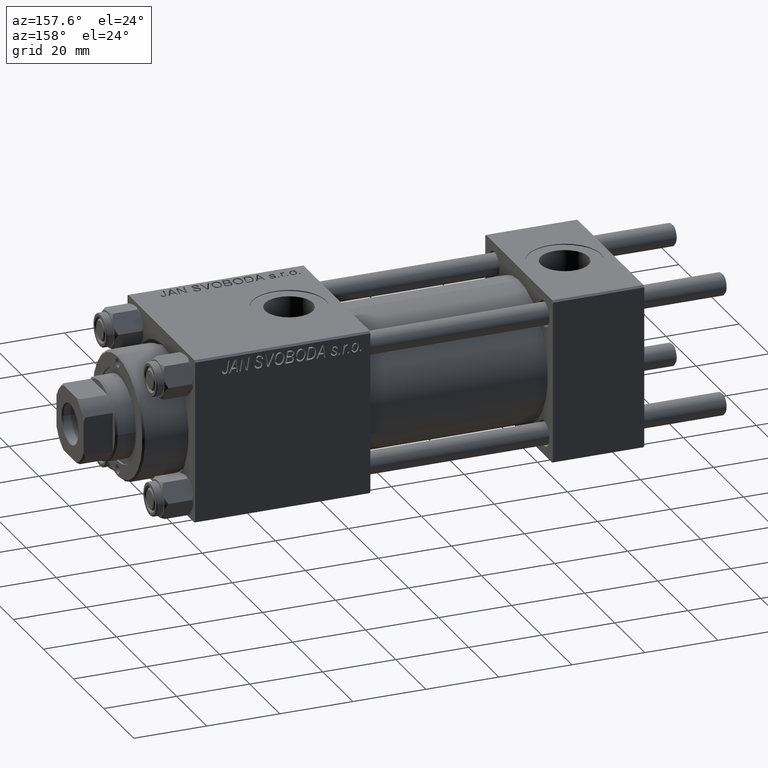
[diagram: clean part render]
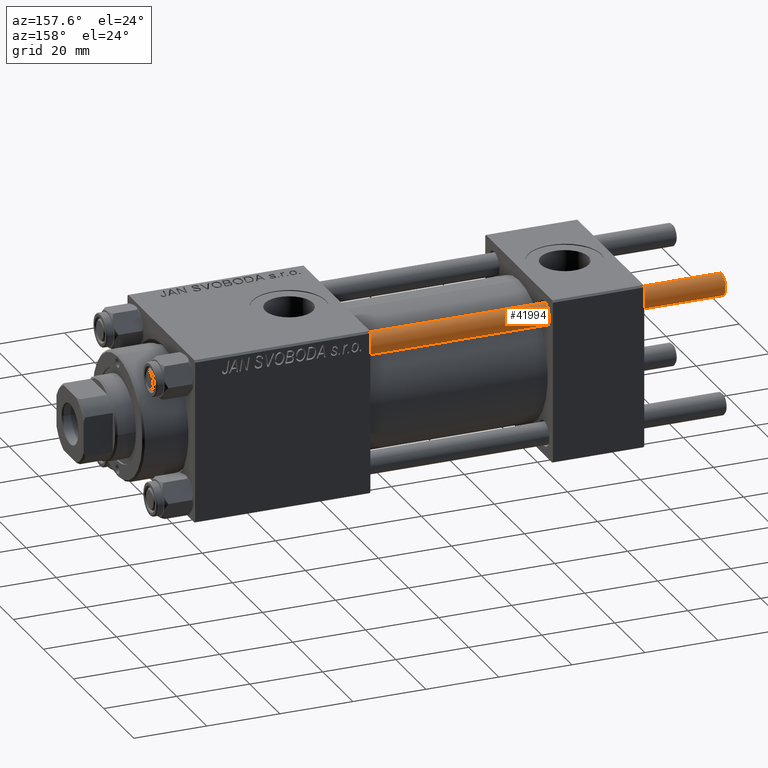
[diagram: same view with one face highlighted and labeled with its STEP entity id]
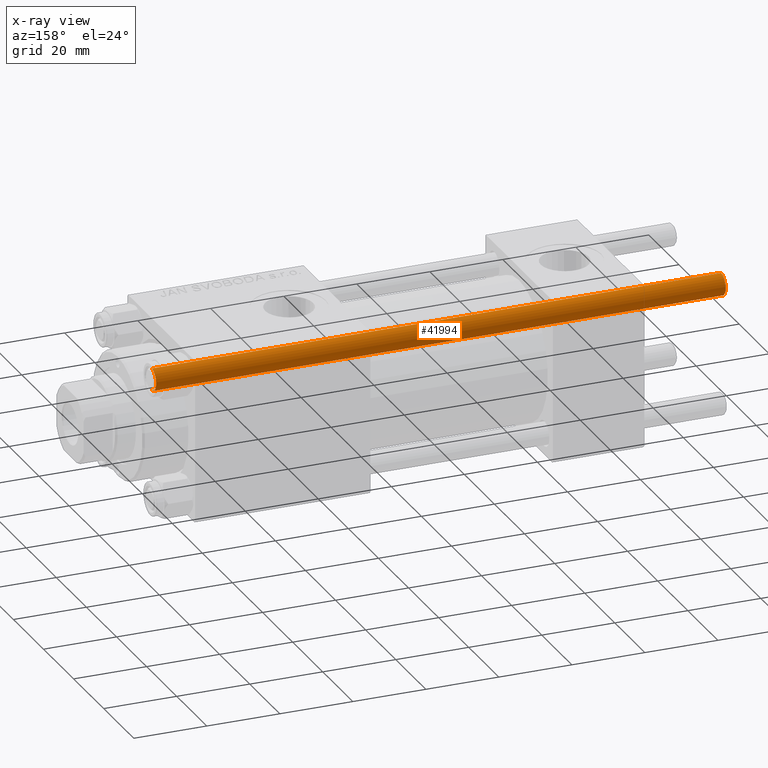
[diagram: x-ray of the same camera — body ghosted, the highlighted face saturated]
A machine part, auxiliary view. The second image highlights one B-rep face of the part: STEP entity #41994.
The next image is the same camera in x-ray: the body ghosted, the highlighted face saturated — about 0% of this face is hidden behind the body in this view.
In plain terms, the highlighted cylindrical surface (edge-blend (fillet) strip) has radius 3 mm, axis along (-1, -0, -0).
Its self-contained STEP definition (entity closure, byte-faithful):
#46 = EDGE_CURVE ( 'NONE', #40338, #33728, #46517, .T. ) ;
#4175 = ORIENTED_EDGE ( 'NONE', *, *, #10466, .F. ) ;
#4250 = DIRECTION ( 'NONE',  ( -0.000000000000000000, -0.000000000000000000, -1.000000000000000000 ) ) ;
#4292 = CIRCLE ( 'NONE', #32814, 3.000000000000000444 ) ;
#4408 = VECTOR ( 'NONE', #28742, 1000.000000000000000 ) ;
#6270 = ORIENTED_EDGE ( 'NONE', *, *, #23502, .T. ) ;
#8562 = EDGE_CURVE ( 'NONE', #48596, #40338, #35588, .T. ) ;
#9511 = DIRECTION ( 'NONE',  ( -0.000000000000000000, -0.000000000000000000, 1.000000000000000000 ) ) ;
#9581 = LINE ( 'NONE', #37461, #41546 ) ;
#10025 = CARTESIAN_POINT ( 'NONE',  ( 0.000000000000000000, 0.000000000000000000, 0.4999999999999726885 ) ) ;
#10058 = ORIENTED_EDGE ( 'NONE', *, *, #8562, .T. ) ;
#10466 = EDGE_CURVE ( 'NONE', #48596, #17580, #9581, .T. ) ;
#10497 = CARTESIAN_POINT ( 'NONE',  ( 3.000000000000000444, 3.673940397442060361E-16, 157.0000000000000000 ) ) ;
#12131 = FACE_OUTER_BOUND ( 'NONE', #13395, .T. ) ;
#12245 = CARTESIAN_POINT ( 'NONE',  ( -3.000000000000000444, 0.000000000000000000, 0.4999999999999726885 ) ) ;
#13395 = EDGE_LOOP ( 'NONE', ( #10058, #50425, #6270, #4175 ) ) ;
#17386 = DIRECTION ( 'NONE',  ( 1.000000000000000000, 0.000000000000000000, 0.000000000000000000 ) ) ;
#17580 = VERTEX_POINT ( 'NONE', #12245 ) ;
#18695 = CARTESIAN_POINT ( 'NONE',  ( 3.000000000000000444, 3.673940397442060361E-16, 156.5000000000000284 ) ) ;
#19608 = AXIS2_PLACEMENT_3D ( 'NONE', #30273, #21860, #17386 ) ;
#21411 = DIRECTION ( 'NONE',  ( -0.000000000000000000, -0.000000000000000000, -1.000000000000000000 ) ) ;
#21860 = DIRECTION ( 'NONE',  ( 0.000000000000000000, 0.000000000000000000, -1.000000000000000000 ) ) ;
#23502 = EDGE_CURVE ( 'NONE', #33728, #17580, #4292, .T. ) ;
#24236 = CYLINDRICAL_SURFACE ( 'NONE', #40039, 3.000000000000000444 ) ;
#28742 = DIRECTION ( 'NONE',  ( -0.000000000000000000, -0.000000000000000000, -1.000000000000000000 ) ) ;
#30273 = CARTESIAN_POINT ( 'NONE',  ( 0.000000000000000000, 0.000000000000000000, 156.5000000000000284 ) ) ;
#30530 = DIRECTION ( 'NONE',  ( 1.000000000000000000, 0.000000000000000000, 0.000000000000000000 ) ) ;
#32814 = AXIS2_PLACEMENT_3D ( 'NONE', #10025, #9511, #30530 ) ;
#33426 = DIRECTION ( 'NONE',  ( -1.000000000000000000, 0.000000000000000000, 0.000000000000000000 ) ) ;
#33728 = VERTEX_POINT ( 'NONE', #41059 ) ;
#35588 = CIRCLE ( 'NONE', #19608, 3.000000000000000444 ) ;
#37461 = CARTESIAN_POINT ( 'NONE',  ( -3.000000000000000444, 0.000000000000000000, 157.0000000000000000 ) ) ;
#40039 = AXIS2_PLACEMENT_3D ( 'NONE', #40261, #4250, #33426 ) ;
#40261 = CARTESIAN_POINT ( 'NONE',  ( 0.000000000000000000, 0.000000000000000000, 157.0000000000000000 ) ) ;
#40338 = VERTEX_POINT ( 'NONE', #18695 ) ;
#41059 = CARTESIAN_POINT ( 'NONE',  ( 3.000000000000000444, 3.673940397442060361E-16, 0.4999999999999726885 ) ) ;
#41546 = VECTOR ( 'NONE', #21411, 1000.000000000000000 ) ;
#41994 = ADVANCED_FACE ( 'NONE', ( #12131 ), #24236, .T. ) ;
#46517 = LINE ( 'NONE', #10497, #4408 ) ;
#48596 = VERTEX_POINT ( 'NONE', #51339 ) ;
#50425 = ORIENTED_EDGE ( 'NONE', *, *, #46, .T. ) ;
#51339 = CARTESIAN_POINT ( 'NONE',  ( -3.000000000000000444, 0.000000000000000000, 156.5000000000000284 ) ) ;